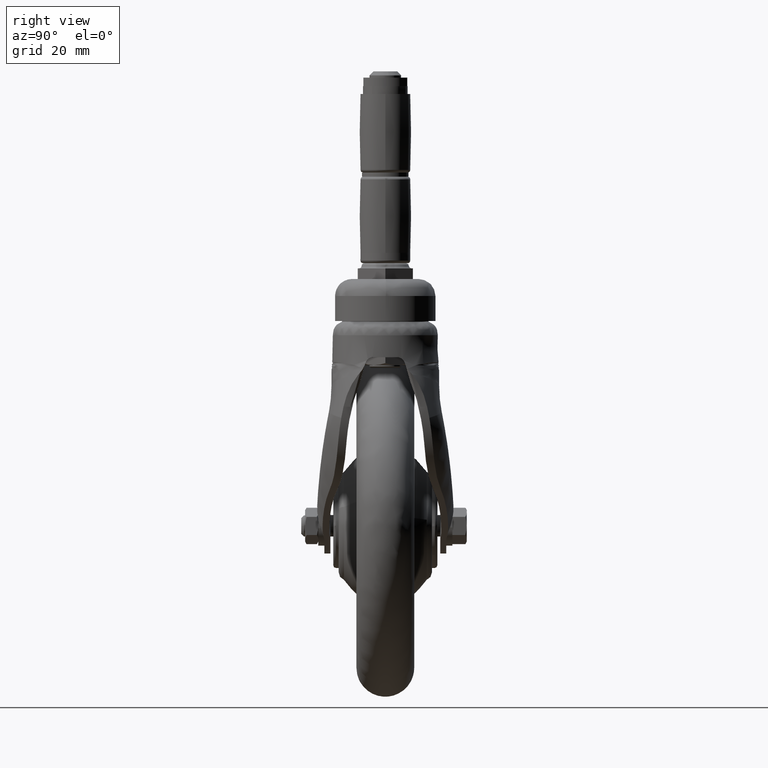
[diagram: clean part render]
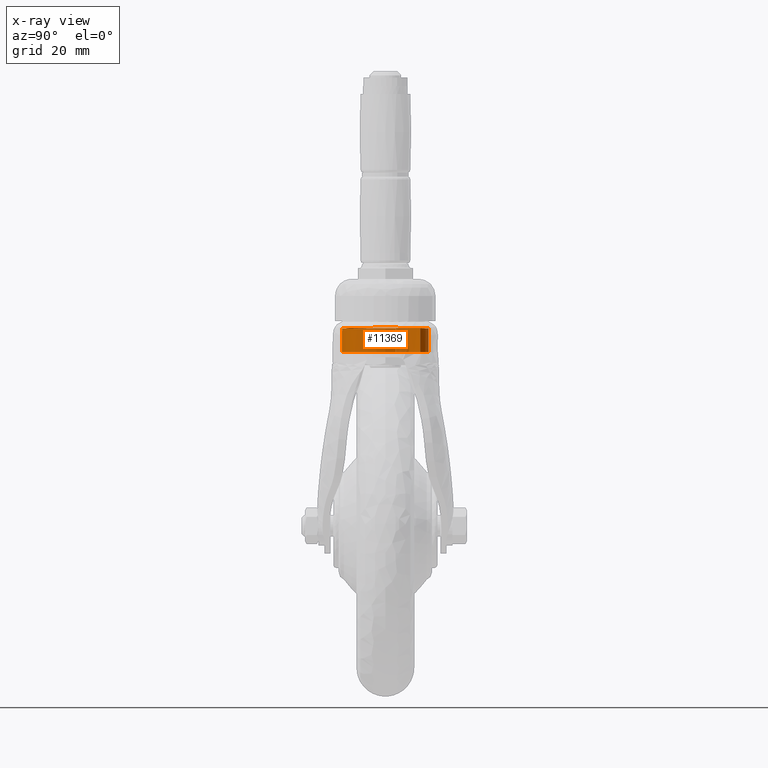
[diagram: x-ray — body ghosted, one internal face saturated and labeled with its STEP entity id]
A machine part, right view, then the same camera in x-ray: the body is ghosted and one INTERNAL B-rep face — a face not visible from any outside direction — is saturated and labeled: STEP entity #11369.
In plain terms, the highlighted face is a freeform B-spline surface patch.
Its self-contained STEP definition (entity closure, byte-faithful):
#11051=CARTESIAN_POINT('',(61.002456283382713,4.021367043484758,75.587504057680036));
#11052=CARTESIAN_POINT('',(62.907263208429306,-3.558540290696009,75.587504057680022));
#11053=CARTESIAN_POINT('',(58.249062442713033,-9.834243457891956,75.587504057680036));
#11054=CARTESIAN_POINT('',(48.414818984821075,-23.083305900604994,75.587504057680036));
#11055=CARTESIAN_POINT('',(35.165756542108042,-13.249062442713040,75.587504057680036));
#11056=CARTESIAN_POINT('',(21.916694099395016,-3.414818984821078,75.587504057680036));
#11057=CARTESIAN_POINT('',(31.750937557286971,9.834243457891956,75.587504057680036));
#11058=CARTESIAN_POINT('',(41.585181015178932,23.083305900604994,75.587504057680036));
#11059=CARTESIAN_POINT('',(54.834243457891958,13.249062442713040,75.587504057680036));
#11060=CARTESIAN_POINT('',(61.002456283382713,4.021367043484758,65.965312398550211));
#11061=CARTESIAN_POINT('',(62.907263208429306,-3.558540290696009,65.965312398550196));
#11062=CARTESIAN_POINT('',(58.249062442713033,-9.834243457891956,65.965312398550196));
#11063=CARTESIAN_POINT('',(48.414818984821075,-23.083305900604994,65.965312398550196));
#11064=CARTESIAN_POINT('',(35.165756542108042,-13.249062442713040,65.965312398550196));
#11065=CARTESIAN_POINT('',(21.916694099395016,-3.414818984821078,65.965312398550196));
#11066=CARTESIAN_POINT('',(31.750937557286971,9.834243457891956,65.965312398550196));
#11067=CARTESIAN_POINT('',(41.585181015178932,23.083305900604994,65.965312398550196));
#11068=CARTESIAN_POINT('',(54.834243457891958,13.249062442713040,65.965312398550196));
#11076=(BOUNDED_SURFACE()B_SPLINE_SURFACE(2,1,((#11051,#11060),(#11052,#11061),(#11053,#11062),(#11054,#11063),(#11055,#11064),(#11056,#11065),(#11057,#11066),(#11058,#11067),(#11059,#11068)),.UNSPECIFIED.,.F.,.F.,.U.)B_SPLINE_SURFACE_WITH_KNOTS((3,2,2,2,3),(2,2),(0.0,15.309333265309590,42.647428381933857,69.985523498558138,97.323618615182397),(0.0,9.622191659129840),.UNSPECIFIED.)GEOMETRIC_REPRESENTATION_ITEM()RATIONAL_B_SPLINE_SURFACE(((0.855662221768731,0.855662221768731),(0.835979797464467,0.835979797464467),(1.0,1.0),(0.707106781186548,0.707106781186548),(1.0,1.0),(0.707106781186548,0.707106781186548),(1.0,1.0),(0.707106781186548,0.707106781186548),(1.0,1.0)))REPRESENTATION_ITEM('')SURFACE());
#11077=CARTESIAN_POINT('',(61.500000000000000,0.0,66.199999999999989));
#11078=VERTEX_POINT('',#11077);
#11079=CARTESIAN_POINT('',(61.002456283335050,4.021367043674417,66.199999999999989));
#11080=VERTEX_POINT('',#11079);
#11081=CARTESIAN_POINT('',(61.500000000000000,0.0,66.199999999999989));
#11082=CARTESIAN_POINT('',(61.500000000000007,2.041462825007332,66.199999999999989));
#11083=CARTESIAN_POINT('',(61.002456283335057,4.021367043674418,66.199999999999989));
#11091=(BOUNDED_CURVE()B_SPLINE_CURVE(2,(#11081,#11082,#11083),.UNSPECIFIED.,.F.,.U.)B_SPLINE_CURVE_WITH_KNOTS((3,3),(0.0,0.041610900598623),.UNSPECIFIED.)CURVE()GEOMETRIC_REPRESENTATION_ITEM()RATIONAL_B_SPLINE_CURVE((1.0,0.951249797543770,0.918727913716092))REPRESENTATION_ITEM(''));
#11092=EDGE_CURVE('',#11078,#11080,#11091,.T.);
#11093=ORIENTED_EDGE('',*,*,#11092,.T.);
#11094=CARTESIAN_POINT('',(61.002416216861938,4.021349776961587,75.050108710111630));
#11095=VERTEX_POINT('',#11094);
#11096=CARTESIAN_POINT('',(61.002416216861938,4.021349776961587,75.050108710111630));
#11097=CARTESIAN_POINT('',(61.002456283335050,4.021367043674417,66.199999999999989));
#11098=QUASI_UNIFORM_CURVE('',1,(#11096,#11097),.UNSPECIFIED.,.F.,.U.);
#11099=EDGE_CURVE('',#11095,#11080,#11098,.T.);
#11100=ORIENTED_EDGE('',*,*,#11099,.F.);
#11101=CARTESIAN_POINT('',(50.071148555186127,-15.701383673728840,75.186873105771980));
#11102=VERTEX_POINT('',#11101);
#11103=CARTESIAN_POINT('',(61.002416216861938,4.021349776961587,75.050108710111630));
#11104=CARTESIAN_POINT('',(61.044515756382481,3.853817918212942,75.049430920740107));
#11105=CARTESIAN_POINT('',(61.083913804950193,3.685902906384054,75.048801995114630));
#11106=CARTESIAN_POINT('',(61.235492137584963,2.991224065681019,75.046429495896490));
#11107=CARTESIAN_POINT('',(61.324212996238892,2.461132848417999,75.045176593534407));
#11108=CARTESIAN_POINT('',(61.449766430512362,1.393590870202210,75.043717623388659));
#11109=CARTESIAN_POINT('',(61.486600753810642,0.856140356130457,75.043512020254155));
#11110=CARTESIAN_POINT('',(61.502094606793598,0.044326412711740,75.043591933246020));
#11111=CARTESIAN_POINT('',(61.500614403910468,-0.227431022614487,75.043676721022777));
#11112=CARTESIAN_POINT('',(61.484112125386211,-0.771990271993585,75.043865791608113));
#11113=CARTESIAN_POINT('',(61.469157040194709,-1.042935339340014,75.043983867783254));
#11114=CARTESIAN_POINT('',(61.404599887550773,-1.851850023470536,75.044563756470254));
#11115=CARTESIAN_POINT('',(61.335352717705540,-2.385908393832668,75.045266569129993));
#11116=CARTESIAN_POINT('',(61.145478789758450,-3.443794445083077,75.047746262989449));
#11117=CARTESIAN_POINT('',(61.024850665056363,-3.967621855419922,75.049522620433919));
#11118=CARTESIAN_POINT('',(60.805031553861568,-4.745621927651246,75.052957824417959));
#11119=CARTESIAN_POINT('',(60.725267574906091,-5.003662841653439,75.054227592108234));
#11120=CARTESIAN_POINT('',(60.595735151205453,-5.388755788802117,75.056280919905831));
#11121=CARTESIAN_POINT('',(60.550909162195929,-5.516791880899684,75.056989902638023));
#11122=CARTESIAN_POINT('',(60.457925513754653,-5.772200748501352,75.058447633472426));
#11123=CARTESIAN_POINT('',(60.409696453156869,-5.899750691175909,75.059197464287919));
#11124=CARTESIAN_POINT('',(60.161224120220922,-6.533051723968057,75.063000941459521));
#11125=CARTESIAN_POINT('',(59.939026485529631,-7.025849569998406,75.066106101919857));
#11126=CARTESIAN_POINT('',(59.449305257444017,-7.984653566463605,75.072484978205566));
#11127=CARTESIAN_POINT('',(59.181777940552109,-8.450656604865332,75.075872671938910));
#11128=CARTESIAN_POINT('',(58.601561539794410,-9.355962716372414,75.083481654165865));
#11129=CARTESIAN_POINT('',(58.288874833533150,-9.795267197308570,75.087702626880571));
#11130=CARTESIAN_POINT('',(57.869075396357850,-10.327287928903710,75.093476465441753));
#11131=CARTESIAN_POINT('',(57.783665083863127,-10.432834597709210,75.094654960925965));
#11132=CARTESIAN_POINT('',(57.609911712851847,-10.642194169696500,75.097054180709350));
#11133=CARTESIAN_POINT('',(57.521522879633643,-10.746051595716439,75.098275528252671));
#11134=CARTESIAN_POINT('',(57.253423831456821,-11.053291492969709,75.101971262068531));
#11135=CARTESIAN_POINT('',(57.070316703519119,-11.252920033960310,75.104484485455288));
#11136=CARTESIAN_POINT('',(56.508120675580088,-11.836508697584900,75.112049858359612));
#11137=CARTESIAN_POINT('',(56.116186904511437,-12.205208689088471,75.117028449738143));
#11138=CARTESIAN_POINT('',(55.298600826984107,-12.902549683555231,75.126809920270475));
#11139=CARTESIAN_POINT('',(54.872949003092899,-13.231189533808561,75.131730605226394));
#11140=CARTESIAN_POINT('',(54.208869224243863,-13.693725571810910,75.139488136461736));
#11141=CARTESIAN_POINT('',(53.983234719873003,-13.842824685393060,75.142133162554074));
#11142=CARTESIAN_POINT('',(53.523268672639418,-14.130687893979900,75.147554246120805));
#11143=CARTESIAN_POINT('',(53.288421891325982,-14.269720625819771,75.150336453479454));
#11144=CARTESIAN_POINT('',(52.576337351833558,-14.667789593336011,75.158786411539296));
#11145=CARTESIAN_POINT('',(52.090594248356886,-14.908598822604530,75.164580971139983));
#11146=CARTESIAN_POINT('',(51.097315115798253,-15.341640360424540,75.176014204505762));
#11147=CARTESIAN_POINT('',(50.589779522231787,-15.533873425414070,75.181549429761290));
#11148=CARTESIAN_POINT('',(50.071148555186127,-15.701383673728840,75.186873105771980));
#11149=B_SPLINE_CURVE_WITH_KNOTS('',3,(#11103,#11104,#11105,#11106,#11107,#11108,#11109,#11110,#11111,#11112,#11113,#11114,#11115,#11116,#11117,#11118,#11119,#11120,#11121,#11122,#11123,#11124,#11125,#11126,#11127,#11128,#11129,#11130,#11131,#11132,#11133,#11134,#11135,#11136,#11137,#11138,#11139,#11140,#11141,#11142,#11143,#11144,#11145,#11146,#11147,#11148),.UNSPECIFIED.,.F.,.U.,(4,2,2,2,2,2,2,2,2,2,2,2,2,2,2,2,2,2,2,2,2,2,4),(0.760629403587448,0.765625000000006,0.781250000000006,0.796875000000005,0.804687500000005,0.812500000000005,0.828125000000004,0.843750000000004,0.851562500000004,0.855468750000004,0.859375000000004,0.875000000000003,0.890625000000003,0.906250000000002,0.910156250000002,0.914062500000002,0.921875000000002,0.937500000000001,0.953125000000001,0.960937500000001,0.968750000000001,0.984375000000000,1.0),.UNSPECIFIED.);
#11150=EDGE_CURVE('',#11095,#11102,#11149,.T.);
#11151=ORIENTED_EDGE('',*,*,#11150,.T.);
#11152=CARTESIAN_POINT('',(28.604281801543880,1.852080548127024,75.357613298993712));
#11153=VERTEX_POINT('',#11152);
#11154=CARTESIAN_POINT('',(50.071148555186127,-15.701383673728840,75.186873105771980));
#11155=CARTESIAN_POINT('',(49.552569311656953,-15.868871662154330,75.192196097487169));
#11156=CARTESIAN_POINT('',(49.030023746158740,-16.009342891816090,75.197353717309994));
#11157=CARTESIAN_POINT('',(47.977223534607170,-16.238114132713068,75.207786156620202));
#11158=CARTESIAN_POINT('',(47.446967352055282,-16.326403838301271,75.213058532215413));
#11159=CARTESIAN_POINT('',(46.378838744232482,-16.451076430794600,75.223708626616911));
#11160=CARTESIAN_POINT('',(45.840966642437913,-16.487461575389119,75.229085552375167));
#11161=CARTESIAN_POINT('',(45.163752614622993,-16.499743540663200,75.235613879234720));
#11162=CARTESIAN_POINT('',(45.028065540123542,-16.500536114984762,75.236908932767719));
#11163=CARTESIAN_POINT('',(44.756197631110332,-16.498758737926270,75.239467462997311));
#11164=CARTESIAN_POINT('',(44.619839211393057,-16.496180804215399,75.240732522877707));
#11165=CARTESIAN_POINT('',(44.211963354367057,-16.483416199544450,75.244444853386071));
#11166=CARTESIAN_POINT('',(43.941315318409842,-16.468219015574480,75.246809271834110));
#11167=CARTESIAN_POINT('',(43.133106129237028,-16.402954316462989,75.253717505720942));
#11168=CARTESIAN_POINT('',(42.599271172101133,-16.333260220403190,75.258090754814390));
#11169=CARTESIAN_POINT('',(41.541378476712737,-16.142392070891450,75.266807528075688));
#11170=CARTESIAN_POINT('',(41.017320843859693,-16.021217397214830,75.271149578477903));
#11171=CARTESIAN_POINT('',(40.238653697040512,-15.800390982926199,75.277649676420580));
#11172=CARTESIAN_POINT('',(39.980336695552339,-15.720259913561190,75.279811089009030));
#11173=CARTESIAN_POINT('',(39.594750506267793,-15.590114243700709,75.283018729788054));
#11174=CARTESIAN_POINT('',(39.466536809694063,-15.545073389874350,75.284082003067539));
#11175=CARTESIAN_POINT('',(39.210746539941233,-15.451636297515661,75.286189882327591));
#11176=CARTESIAN_POINT('',(39.083392468821202,-15.403317124881569,75.287232623643391));
#11177=CARTESIAN_POINT('',(38.451530983785801,-15.154624064072390,75.292352586977728));
#11178=CARTESIAN_POINT('',(37.959555588738667,-14.932230692136059,75.296086220006103));
#11179=CARTESIAN_POINT('',(37.001852965697580,-14.441918372932321,75.302882460941575));
#11180=CARTESIAN_POINT('',(36.536128176608671,-14.173996401525731,75.306040772427977));
#11181=CARTESIAN_POINT('',(35.630926060190490,-13.592635637388129,75.312284403347789));
#11182=CARTESIAN_POINT('',(35.191446904866282,-13.279200008501309,75.315369238831735));
#11183=CARTESIAN_POINT('',(34.552483456249817,-12.773921183216050,75.319952386159443));
#11184=CARTESIAN_POINT('',(34.342546090891567,-12.599295633914860,75.321472132072515));
#11185=CARTESIAN_POINT('',(33.933982527997742,-12.242010681280229,75.324424240439484));
#11186=CARTESIAN_POINT('',(33.734824573622248,-12.058960933335250,75.325860306741205));
#11187=CARTESIAN_POINT('',(33.152456903295288,-11.496817605019009,75.329968035307857));
#11188=CARTESIAN_POINT('',(32.784317539598149,-11.104760312561551,75.332357309472386));
#11189=CARTESIAN_POINT('',(32.087736577894447,-10.286497926262021,75.336523704163938));
#11190=CARTESIAN_POINT('',(31.759294936143821,-9.860293339166811,75.338385400108294));
#11191=CARTESIAN_POINT('',(31.296883557886240,-9.194966933931827,75.341124867661080));
#11192=CARTESIAN_POINT('',(31.147797219894059,-8.968847172176421,75.342026304439557));
#11193=CARTESIAN_POINT('',(30.931888925717399,-8.623026396210834,75.343369691472901));
#11194=CARTESIAN_POINT('',(30.861110904327440,-8.506479567533052,75.343816463980005));
#11195=CARTESIAN_POINT('',(30.722741908013841,-8.272138621687597,75.344702210893388));
#11196=CARTESIAN_POINT('',(30.655145023153231,-8.154346942712285,75.345141195985974));
#11197=CARTESIAN_POINT('',(30.325011428190081,-7.562316639149617,75.347311429531814));
#11198=CARTESIAN_POINT('',(30.085968800028748,-7.078885172561795,75.348981840819874));
#11199=CARTESIAN_POINT('',(29.656745257803141,-6.092902627678198,75.351838963657386));
#11200=CARTESIAN_POINT('',(29.466566910873379,-5.590350324375041,75.352931762086484));
#11201=CARTESIAN_POINT('',(29.135239086208550,-4.566060530928652,75.354560780065867));
#11202=CARTESIAN_POINT('',(28.994085403107722,-4.044324862925950,75.355172232230132));
#11203=CARTESIAN_POINT('',(28.849289851935481,-3.379772603790065,75.355894440205091));
#11204=CARTESIAN_POINT('',(28.821906228520319,-3.246160328367398,75.356035995038454));
#11205=CARTESIAN_POINT('',(28.770617999029788,-2.979166327566838,75.356313456513149));
#11206=CARTESIAN_POINT('',(28.698783393889169,-2.578493771882844,75.356721409036084));
#11207=CARTESIAN_POINT('',(28.642070222053480,-2.177282671764952,75.357108972078322));
#11208=CARTESIAN_POINT('',(28.548494129060821,-1.374153506847752,75.357836194744920));
#11209=CARTESIAN_POINT('',(28.512530365432401,-0.837793109867064,75.358267868419389));
#11210=CARTESIAN_POINT('',(28.492956850763971,0.236792352866846,75.358649600163858));
#11211=CARTESIAN_POINT('',(28.509345803003580,0.775017396048351,75.358501986651731));
#11212=CARTESIAN_POINT('',(28.566744756871689,1.493383256822690,75.357950513896881));
#11213=CARTESIAN_POINT('',(28.584015867660209,1.672678571270203,75.357789834779737));
#11214=CARTESIAN_POINT('',(28.604281801543880,1.852080548127024,75.357613298993712));
#11215=B_SPLINE_CURVE_WITH_KNOTS('',3,(#11154,#11155,#11156,#11157,#11158,#11159,#11160,#11161,#11162,#11163,#11164,#11165,#11166,#11167,#11168,#11169,#11170,#11171,#11172,#11173,#11174,#11175,#11176,#11177,#11178,#11179,#11180,#11181,#11182,#11183,#11184,#11185,#11186,#11187,#11188,#11189,#11190,#11191,#11192,#11193,#11194,#11195,#11196,#11197,#11198,#11199,#11200,#11201,#11202,#11203,#11204,#11205,#11206,#11207,#11208,#11209,#11210,#11211,#11212,#11213,#11214),.UNSPECIFIED.,.F.,.U.,(4,2,2,2,2,2,2,2,2,2,2,2,2,2,2,2,2,2,2,2,2,2,2,2,2,2,1,2,2,2,4),(0.000001557555691,0.015625000000001,0.031250000000002,0.046875000000002,0.050781250000002,0.054687500000003,0.062500000000003,0.078125000000003,0.093750000000004,0.101562500000004,0.105468750000004,0.109375000000005,0.125000000000005,0.140625000000005,0.156250000000005,0.164062500000005,0.171875000000005,0.187500000000005,0.203125000000005,0.210937500000006,0.214843750000006,0.218750000000006,0.234375000000006,0.250000000000006,0.265625000000006,0.269531250000006,0.273437500000006,0.281250000000006,0.296875000000007,0.312500000000007,0.317692825824048),.UNSPECIFIED.);
#11216=EDGE_CURVE('',#11102,#11153,#11215,.T.);
#11217=ORIENTED_EDGE('',*,*,#11216,.T.);
#11218=CARTESIAN_POINT('',(39.924506904894258,15.699979931246220,75.280540674042356));
#11219=VERTEX_POINT('',#11218);
#11220=CARTESIAN_POINT('',(28.604281801543880,1.852080548127024,75.357613298993712));
#11221=CARTESIAN_POINT('',(28.614505505086829,1.942585173007317,75.357524320510507));
#11222=CARTESIAN_POINT('',(28.625491389753378,2.033116943428999,75.357431306613975));
#11223=CARTESIAN_POINT('',(28.654770473511501,2.258710590853589,75.357191867838793));
#11224=CARTESIAN_POINT('',(28.673975519437128,2.393560264398642,75.357041739238554));
#11225=CARTESIAN_POINT('',(28.715586779917832,2.661972108918964,75.356733292365334));
#11226=CARTESIAN_POINT('',(28.738010797226320,2.795674269429523,75.356574825158447));
#11227=CARTESIAN_POINT('',(28.858141560645318,3.461691569521176,75.355768543257938));
#11228=CARTESIAN_POINT('',(28.979821397297169,3.986544573609098,75.355093215391932));
#11229=CARTESIAN_POINT('',(29.273223154076081,5.020673826498609,75.353634871837471));
#11230=CARTESIAN_POINT('',(29.444946893291689,5.529949509385973,75.352852030442122));
#11231=CARTESIAN_POINT('',(29.740327113428240,6.282098035890482,75.351288548954969));
#11232=CARTESIAN_POINT('',(29.845097414967992,6.530849902297872,75.350695340003455));
#11233=CARTESIAN_POINT('',(30.067440533748229,7.024368242397642,75.349306171568571));
#11234=CARTESIAN_POINT('',(30.185100962760259,7.269306218102433,75.348521837415234));
#11235=CARTESIAN_POINT('',(30.557162447014360,7.996945190316184,75.346005294672267));
#11236=CARTESIAN_POINT('',(30.827108857487541,8.465757232847397,75.344146247470135));
#11237=CARTESIAN_POINT('',(31.409314221656839,9.371935036217737,75.340368329396043));
#11238=CARTESIAN_POINT('',(31.721577377275398,9.809297672471852,75.338449077509949));
#11239=CARTESIAN_POINT('',(32.388186856599830,10.652746792362430,75.334478376512934));
#11240=CARTESIAN_POINT('',(32.742531416345763,11.058834592813760,75.332428180813267));
#11241=CARTESIAN_POINT('',(33.212378733016507,11.546438624027189,75.329497519760423));
#11242=CARTESIAN_POINT('',(33.307697136786580,11.642956828570821,75.328891979966926));
#11243=CARTESIAN_POINT('',(33.501060079365743,11.833966982900771,75.327630697131241));
#11244=CARTESIAN_POINT('',(33.599245303297977,11.928588922021410,75.326972244650833));
#11245=CARTESIAN_POINT('',(33.896656411508388,12.208183746887400,75.324931250566053));
#11246=CARTESIAN_POINT('',(34.098746209834403,12.388933315781420,75.323487499769996));
#11247=CARTESIAN_POINT('',(34.716234452784967,12.914580075713040,75.319014569322334));
#11248=CARTESIAN_POINT('',(35.569415941528163,13.571249373916091,75.312695861837142));
#11249=CARTESIAN_POINT('',(36.481248407992979,14.141131871333060,75.306247746002470));
#11250=CARTESIAN_POINT('',(37.187350652393377,14.535652084074069,75.301297800657764));
#11251=CARTESIAN_POINT('',(37.426429180967588,14.661667279968571,75.299625762466761));
#11252=CARTESIAN_POINT('',(37.790704290112572,14.842318239690171,75.297047352964952));
#11253=CARTESIAN_POINT('',(37.913072655540070,14.901139262835891,75.296175945874708));
#11254=CARTESIAN_POINT('',(38.159716690283368,15.015958738918849,75.294400372005171));
#11255=CARTESIAN_POINT('',(38.284063135373280,15.071982571481410,75.293495642544215));
#11256=CARTESIAN_POINT('',(38.907132221422430,15.343486940361640,75.288889349573026));
#11257=CARTESIAN_POINT('',(39.412478784195002,15.534451282026410,75.284822580244580));
#11258=CARTESIAN_POINT('',(39.924506904894258,15.699979931246220,75.280540674042356));
#11259=B_SPLINE_CURVE_WITH_KNOTS('',3,(#11220,#11221,#11222,#11223,#11224,#11225,#11226,#11227,#11228,#11229,#11230,#11231,#11232,#11233,#11234,#11235,#11236,#11237,#11238,#11239,#11240,#11241,#11242,#11243,#11244,#11245,#11246,#11247,#11248,#11249,#11250,#11251,#11252,#11253,#11254,#11255,#11256,#11257,#11258),.UNSPECIFIED.,.F.,.U.,(4,2,2,2,2,2,2,2,2,2,2,2,2,2,1,2,2,2,2,4),(0.317692825824048,0.320312500000007,0.324218750000007,0.328125000000007,0.343750000000007,0.359375000000007,0.367187500000007,0.375000000000008,0.390625000000008,0.406250000000008,0.421875000000008,0.425781250000008,0.429687500000008,0.437500000000008,0.453125000000008,0.468750000000009,0.476562500000009,0.480468750000009,0.484375000000009,0.500000000000009),.UNSPECIFIED.);
#11260=EDGE_CURVE('',#11153,#11219,#11259,.T.);
#11261=ORIENTED_EDGE('',*,*,#11260,.T.);
#11262=CARTESIAN_POINT('',(54.834238692481151,13.249049063385851,75.131954783754821));
#11263=VERTEX_POINT('',#11262);
#11264=CARTESIAN_POINT('',(39.924506904894258,15.699979931246220,75.280540674042356));
#11265=CARTESIAN_POINT('',(40.436535468360233,15.865508904483130,75.276258441788585));
#11266=CARTESIAN_POINT('',(40.955246916761560,16.005598174219621,75.271810140346403));
#11267=CARTESIAN_POINT('',(42.006010901650278,16.235000734304389,75.262883155367277));
#11268=CARTESIAN_POINT('',(42.538062660091512,16.324317037451440,75.258406113144318));
#11269=CARTESIAN_POINT('',(43.211691471722602,16.403365827377719,75.252736183229970));
#11270=CARTESIAN_POINT('',(43.346846433469672,16.417541941113360,75.251597476092371));
#11271=CARTESIAN_POINT('',(43.618024543811828,16.442589446525261,75.249304856552229));
#11272=CARTESIAN_POINT('',(43.753789472273453,16.453433244132089,75.248153106922729));
#11273=CARTESIAN_POINT('',(44.160267020447009,16.480858139709380,75.244682041262678));
#11274=CARTESIAN_POINT('',(44.430707470829482,16.492387668439431,75.242343090788211));
#11275=CARTESIAN_POINT('',(45.240423564972829,16.507082312138820,75.235135960795532));
#11276=CARTESIAN_POINT('',(45.778096714375593,16.490400498886480,75.229970878373564));
#11277=CARTESIAN_POINT('',(46.849233495997630,16.404849100483460,75.219302837715631));
#11278=CARTESIAN_POINT('',(47.382697585001779,16.335979416108149,75.213848150605273));
#11279=CARTESIAN_POINT('',(48.179694714314493,16.192975170994909,75.205742922107461));
#11280=CARTESIAN_POINT('',(48.444826283094393,16.138678734542420,75.203051092280589));
#11281=CARTESIAN_POINT('',(48.974001710781259,16.016587458550820,75.197692688936797));
#11282=CARTESIAN_POINT('',(49.238469382389688,15.948637253606110,75.195021913360364));
#11283=CARTESIAN_POINT('',(50.021673054604840,15.726643537329259,75.187099555393857));
#11284=CARTESIAN_POINT('',(50.532863482758607,15.553989562408660,75.181924626122310));
#11285=CARTESIAN_POINT('',(51.533939135744902,15.160697328420870,75.171264180239632));
#11286=CARTESIAN_POINT('',(52.023821879101739,14.940056696077610,75.165650426071750));
#11287=CARTESIAN_POINT('',(52.982247673828368,14.450709330644020,75.154276887662888));
#11288=CARTESIAN_POINT('',(53.450792881217737,14.182006112153200,75.148570609179785));
#11289=CARTESIAN_POINT('',(54.022727413521757,13.815154801822130,75.141671557358890));
#11290=CARTESIAN_POINT('',(54.136582816139452,13.740123580790261,75.140300583653200));
#11291=CARTESIAN_POINT('',(54.361925260685773,13.587585016665130,75.137594171441393));
#11292=CARTESIAN_POINT('',(54.558466633281142,13.450959823478209,75.135239628436580));
#11293=CARTESIAN_POINT('',(54.751420026060927,13.310522226614760,75.132940071192294));
#11294=CARTESIAN_POINT('',(54.834238692481151,13.249049063385851,75.131954783754821));
#11295=B_SPLINE_CURVE_WITH_KNOTS('',3,(#11264,#11265,#11266,#11267,#11268,#11269,#11270,#11271,#11272,#11273,#11274,#11275,#11276,#11277,#11278,#11279,#11280,#11281,#11282,#11283,#11284,#11285,#11286,#11287,#11288,#11289,#11290,#11291,#11292,#11293,#11294),.UNSPECIFIED.,.F.,.U.,(4,2,2,2,2,2,2,2,2,2,2,2,2,2,1,4),(0.500000000000009,0.515625000000008,0.531250000000008,0.535156250000008,0.539062500000008,0.546875000000008,0.562500000000008,0.578125000000008,0.585937500000008,0.593750000000008,0.609375000000008,0.625000000000009,0.640625000000009,0.644531250000009,0.648437500000009,0.651416638177235),.UNSPECIFIED.);
#11296=EDGE_CURVE('',#11219,#11263,#11295,.T.);
#11297=ORIENTED_EDGE('',*,*,#11296,.T.);
#11298=CARTESIAN_POINT('',(54.834236505286839,13.249067603345100,66.200000000174995));
#11299=VERTEX_POINT('',#11298);
#11300=CARTESIAN_POINT('',(54.834238692481151,13.249049063385851,75.131954783754821));
#11301=CARTESIAN_POINT('',(54.834236505286839,13.249067603345100,66.200000000174995));
#11302=QUASI_UNIFORM_CURVE('',1,(#11300,#11301),.UNSPECIFIED.,.F.,.U.);
#11303=EDGE_CURVE('',#11263,#11299,#11302,.T.);
#11304=ORIENTED_EDGE('',*,*,#11303,.T.);
#11305=CARTESIAN_POINT('',(28.500000000000000,0.0,66.199999999999989));
#11306=VERTEX_POINT('',#11305);
#11307=CARTESIAN_POINT('',(54.834236505286839,13.249067603345102,66.200000000174995));
#11308=CARTESIAN_POINT('',(50.454453379876675,16.500000000000004,66.199999999999989));
#11309=CARTESIAN_POINT('',(45.0,16.500000000000000,66.199999999999989));
#11310=CARTESIAN_POINT('',(28.499999999999993,16.499999999999993,66.199999999999989));
#11311=CARTESIAN_POINT('',(28.500000000000000,0.0,66.199999999999989));
#11319=(BOUNDED_CURVE()B_SPLINE_CURVE(2,(#11307,#11308,#11309,#11310,#11311),.UNSPECIFIED.,.F.,.U.)B_SPLINE_CURVE_WITH_KNOTS((3,2,3),(0.147200876056921,0.250000000000000,0.500000000000000),.UNSPECIFIED.)CURVE()GEOMETRIC_REPRESENTATION_ITEM()RATIONAL_B_SPLINE_CURVE((0.858172938971867,0.879563334788434,1.0,0.707106781186548,1.0))REPRESENTATION_ITEM(''));
#11320=EDGE_CURVE('',#11299,#11306,#11319,.T.);
#11321=ORIENTED_EDGE('',*,*,#11320,.T.);
#11322=CARTESIAN_POINT('',(34.166335030076098,-12.445147782145609,66.199999999992386));
#11323=VERTEX_POINT('',#11322);
#11324=CARTESIAN_POINT('',(28.500000000000000,0.0,66.199999999999989));
#11325=CARTESIAN_POINT('',(28.499999999999996,-7.512528547904134,66.199999999999989));
#11326=CARTESIAN_POINT('',(34.166335030076098,-12.445147782145607,66.199999999992386));
#11334=(BOUNDED_CURVE()B_SPLINE_CURVE(2,(#11324,#11325,#11326),.UNSPECIFIED.,.F.,.U.)B_SPLINE_CURVE_WITH_KNOTS((3,3),(0.500000000000000,0.635432807299125),.UNSPECIFIED.)CURVE()GEOMETRIC_REPRESENTATION_ITEM()RATIONAL_B_SPLINE_CURVE((1.0,0.841330596548869,0.854573535032651))REPRESENTATION_ITEM(''));
#11335=EDGE_CURVE('',#11306,#11323,#11334,.T.);
#11336=ORIENTED_EDGE('',*,*,#11335,.T.);
#11337=CARTESIAN_POINT('',(58.044379498990949,-10.104165650181340,66.199999999996351));
#11338=VERTEX_POINT('',#11337);
#11339=CARTESIAN_POINT('',(34.166335030076098,-12.445147782145607,66.199999999992386));
#11340=CARTESIAN_POINT('',(38.824337213644853,-16.499999999999996,66.199999999999989));
#11341=CARTESIAN_POINT('',(45.0,-16.500000000000000,66.199999999999989));
#11342=CARTESIAN_POINT('',(53.090171462747591,-16.499999999999996,66.199999999999989));
#11343=CARTESIAN_POINT('',(58.044379498990956,-10.104165650181342,66.199999999996336));
#11351=(BOUNDED_CURVE()B_SPLINE_CURVE(2,(#11339,#11340,#11341,#11342,#11343),.UNSPECIFIED.,.F.,.U.)B_SPLINE_CURVE_WITH_KNOTS((3,2,3),(0.635432807299125,0.750000000000000,0.894088413033273),.UNSPECIFIED.)CURVE()GEOMETRIC_REPRESENTATION_ITEM()RATIONAL_B_SPLINE_CURVE((0.854573535032651,0.865776184637678,1.0,0.831189923651850,0.856968455343945))REPRESENTATION_ITEM(''));
#11352=EDGE_CURVE('',#11323,#11338,#11351,.T.);
#11353=ORIENTED_EDGE('',*,*,#11352,.T.);
#11354=CARTESIAN_POINT('',(58.044379498990942,-10.104165650181342,66.199999999996365));
#11355=CARTESIAN_POINT('',(61.500000000000000,-5.642993220884230,66.199999999999989));
#11356=CARTESIAN_POINT('',(61.500000000000000,0.0,66.199999999999989));
#11364=(BOUNDED_CURVE()B_SPLINE_CURVE(2,(#11354,#11355,#11356),.UNSPECIFIED.,.F.,.U.)B_SPLINE_CURVE_WITH_KNOTS((3,3),(0.894088413033273,1.0),.UNSPECIFIED.)CURVE()GEOMETRIC_REPRESENTATION_ITEM()RATIONAL_B_SPLINE_CURVE((0.856968455343944,0.875916857534697,1.0))REPRESENTATION_ITEM(''));
#11365=EDGE_CURVE('',#11338,#11078,#11364,.T.);
#11366=ORIENTED_EDGE('',*,*,#11365,.T.);
#11367=EDGE_LOOP('',(#11093,#11100,#11151,#11217,#11261,#11297,#11304,#11321,#11336,#11353,#11366));
#11368=FACE_OUTER_BOUND('',#11367,.T.);
#11369=ADVANCED_FACE('',(#11368),#11076,.T.);